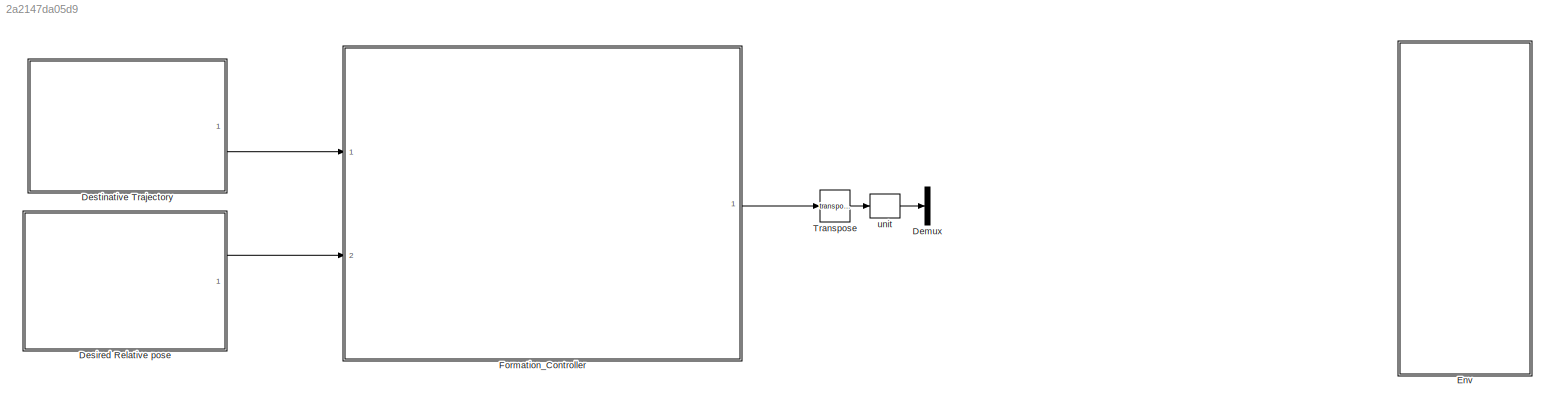
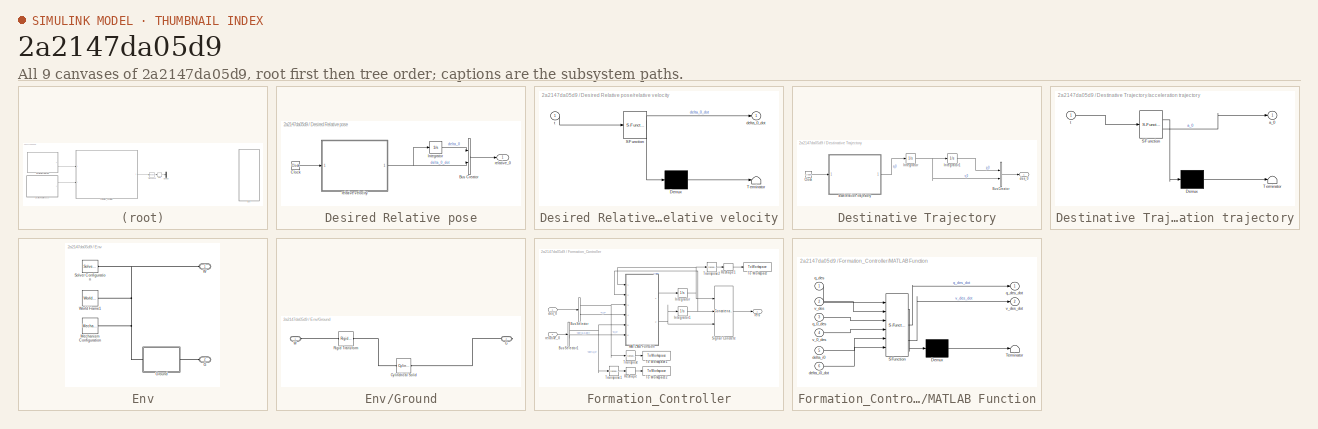
[diagram: thumbnail index - all 9 canvases of the model, root first then tree order]
MODEL slx_2a2147da05d9
KIND model
CONFIG AbsTol = auto
CONFIG EnableMultiTasking = off
CONFIG FixedStep = auto
CONFIG MaxStep = 0.01
CONFIG MinStep = auto
CONFIG RelTol = 1e-3
CONFIG SampleTimeConstraint = Unconstrained
CONFIG SolverName = ode15s
CONFIG StartTime = 0.0
CONFIG StopTime = 16
BLOCK [Demux] Demux
  Outputs = 1
  Ports = [1, 1]
BLOCK [SubSystem] Desired Relative pose
  Ports = [0, 1]
  RequestExecContextInheritance = off
BLOCK [BusCreator] Desired Relative pose/Bus Creator
  DisplayOption = bar
  InheritFromInputs = on
  Inputs = 2
  Ports = [2, 1]
BLOCK [Clock] Desired Relative pose/Clock
BLOCK [Integrator] Desired Relative pose/Integrator
  InitialCondition = delta0_i0
  Ports = [1, 1]
BLOCK [SubSystem] Desired Relative pose/relative velocity
  ErrorFcn = Stateflow.Translate.translate
  PermitHierarchicalResolution = ExplicitOnly
  Ports = [1, 1]
  RequestExecContextInheritance = off
  SFBlockType = MATLAB Function
  TreatAsAtomicUnit = on
BLOCK [Demux] Desired Relative pose/relative velocity/ Demux 
  Outputs = 1
  Ports = [1, 1]
BLOCK [S-Function] Desired Relative pose/relative velocity/ SFunction 
  EnableBusSupport = on
  FunctionName = sf_sfun
  PortCounts = [1 2]
  Ports = [1, 2]
  SFcnIsStateOwnerBlock = off
  SFunctionDeploymentMode = off
  Tag = Stateflow S-Function 5
BLOCK [Terminator] Desired Relative pose/relative velocity/ Terminator 
BLOCK [Outport] Desired Relative pose/relative velocity/delta_0_dot
BLOCK [Inport] Desired Relative pose/relative velocity/t
BLOCK [Outport] Desired Relative pose/relative_0
BLOCK [SubSystem] Destinative Trajectory
  Ports = [0, 1]
  RequestExecContextInheritance = off
BLOCK [BusCreator] Destinative Trajectory/Bus Creator
  DisplayOption = bar
  InheritFromInputs = on
  Inputs = 2
  Ports = [2, 1]
BLOCK [Clock] Destinative Trajectory/Clock
BLOCK [Integrator] Destinative Trajectory/Integrator
  InitialCondition = v0_0
  Ports = [1, 1]
  ZeroCross = off
BLOCK [Integrator] Destinative Trajectory/Integrator1
  InitialCondition = p0_0
  Ports = [1, 1]
BLOCK [SubSystem] Destinative Trajectory/acceleration trajectory
  ErrorFcn = Stateflow.Translate.translate
  PermitHierarchicalResolution = ExplicitOnly
  Ports = [1, 1]
  RequestExecContextInheritance = off
  SFBlockType = MATLAB Function
  TreatAsAtomicUnit = on
BLOCK [Demux] Destinative Trajectory/acceleration trajectory/ Demux 
  Outputs = 1
  Ports = [1, 1]
BLOCK [S-Function] Destinative Trajectory/acceleration trajectory/ SFunction 
  EnableBusSupport = on
  FunctionName = sf_sfun
  PortCounts = [1 2]
  Ports = [1, 2]
  SFcnIsStateOwnerBlock = off
  SFunctionDeploymentMode = off
  Tag = Stateflow S-Function 2
BLOCK [Terminator] Destinative Trajectory/acceleration trajectory/ Terminator 
BLOCK [Outport] Destinative Trajectory/acceleration trajectory/a_0
BLOCK [Inport] Destinative Trajectory/acceleration trajectory/t
BLOCK [Outport] Destinative Trajectory/des_0
BLOCK [SubSystem] Env
  Ports = [0, 0, 0, 0, 0, 2]
  RequestExecContextInheritance = off
BLOCK [PMIOPort] Env/G
  Port = 2
  Side = Left
BLOCK [SubSystem] Env/Ground
  Ports = [0, 0, 0, 0, 0, 1, 1]
  RequestExecContextInheritance = off
BLOCK [Reference] Env/Ground/Cylindrical Solid  REF=sm_lib/Body Elements/Cylindrical Solid
  Ports = [0, 0, 0, 0, 0, 1, 1]
  SourceBlock = sm_lib/Body Elements/Cylindrical Solid
  SourceProductBaseCode = MS
  SourceType = Cylindrical Solid
BLOCK [PMIOPort] Env/Ground/G
  Port = 2
  Side = Right
BLOCK [Reference] Env/Ground/Rigid Transform  REF=sm_lib/Frames and
Transforms/Rigid
Transform
  Ports = [0, 0, 0, 0, 0, 1, 1]
  SourceBlock = sm_lib/Frames and\nTransforms/Rigid\nTransform
  SourceProductBaseCode = MS
  SourceType = Rigid\nTransform
BLOCK [PMIOPort] Env/Ground/W
  Side = Left
BLOCK [Reference] Env/Mechanism Configuration  REF=sm_lib/Utilities/Mechanism
Configuration
  Ports = [0, 0, 0, 0, 0, 0, 1]
  SourceBlock = sm_lib/Utilities/Mechanism\nConfiguration
  SourceProductBaseCode = MS
  SourceType = Mechanism\nConfiguration
BLOCK [Reference] Env/Solver Configuration  REF=nesl_utility/Solver
Configuration
  Ports = [0, 0, 0, 0, 0, 0, 1]
  SourceBlock = nesl_utility/Solver\nConfiguration
  SourceProductBaseCode = PW,SS
  SourceType = Solver\nConfiguration
BLOCK [PMIOPort] Env/W
  Side = Left
BLOCK [Reference] Env/World Frame1  REF=sm_lib/Frames and
Transforms/World Frame
  Ports = [0, 0, 0, 0, 0, 0, 1]
  SourceBlock = sm_lib/Frames and\nTransforms/World Frame
  SourceProductBaseCode = MS
  SourceType = World Frame
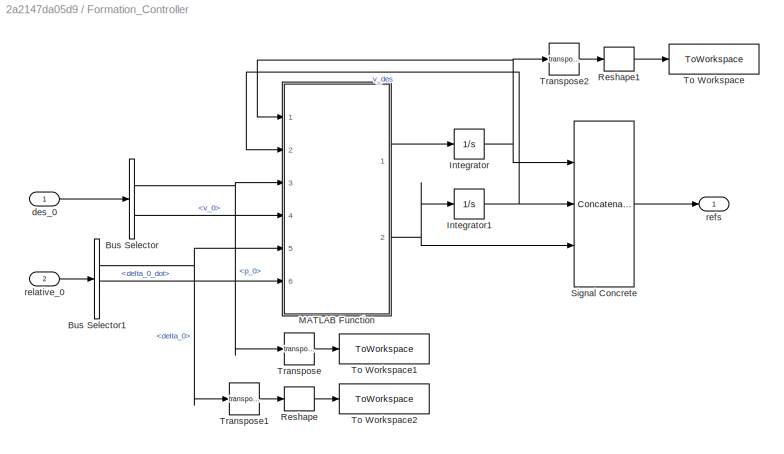
BLOCK [SubSystem] Formation_Controller
  Ports = [2, 1]
  RequestExecContextInheritance = off
BLOCK [BusSelector] Formation_Controller/Bus Selector
  OutputSignals = p_0,v_0
  Ports = [1, 2]
BLOCK [BusSelector] Formation_Controller/Bus Selector1
  OutputSignals = delta_0,delta_0_dot
  Ports = [1, 2]
BLOCK [Integrator] Formation_Controller/Integrator
  InitialCondition = q0
  Ports = [1, 1]
BLOCK [Integrator] Formation_Controller/Integrator1
  InitialCondition = zeros(Num,4)
  Ports = [1, 1]
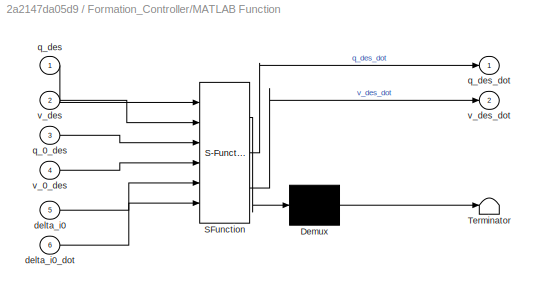
BLOCK [SubSystem] Formation_Controller/MATLAB Function
  ErrorFcn = Stateflow.Translate.translate
  PermitHierarchicalResolution = ExplicitOnly
  Ports = [6, 2]
  RequestExecContextInheritance = off
  SFBlockType = MATLAB Function
  TreatAsAtomicUnit = on
BLOCK [Demux] Formation_Controller/MATLAB Function/ Demux 
  Outputs = 1
  Ports = [1, 1]
BLOCK [S-Function] Formation_Controller/MATLAB Function/ SFunction 
  EnableBusSupport = on
  FunctionName = sf_sfun
  Parameters = Num,adj_matrix,is_0_access,k1,k2
  PortCounts = [6 3]
  Ports = [6, 3]
  SFcnIsStateOwnerBlock = off
  SFunctionDeploymentMode = off
  Tag = Stateflow S-Function 3
BLOCK [Terminator] Formation_Controller/MATLAB Function/ Terminator 
BLOCK [Inport] Formation_Controller/MATLAB Function/delta_i0
  Port = 5
BLOCK [Inport] Formation_Controller/MATLAB Function/delta_i0_dot
  Port = 6
BLOCK [Inport] Formation_Controller/MATLAB Function/q_0_des
  Port = 3
BLOCK [Inport] Formation_Controller/MATLAB Function/q_des
BLOCK [Outport] Formation_Controller/MATLAB Function/q_des_dot
BLOCK [Inport] Formation_Controller/MATLAB Function/v_0_des
  Port = 4
BLOCK [Inport] Formation_Controller/MATLAB Function/v_des
  Port = 2
BLOCK [Outport] Formation_Controller/MATLAB Function/v_des_dot
  Port = 2
BLOCK [Reshape] Formation_Controller/Reshape
  Ports = [1, 1]
BLOCK [Reshape] Formation_Controller/Reshape1
  Ports = [1, 1]
BLOCK [Concatenate] Formation_Controller/Signal Concrete
  ConcatenateDimension = 2
  Mode = Multidimensional array
  NumInputs = 3
  Ports = [3, 1]
BLOCK [ToWorkspace] Formation_Controller/To Workspace
  FixptAsFi = on
  MaxDataPoints = inf
  Ports = [1]
  SampleTime = -1
  Save2DSignal = 2-D array (concatenate along first dimension)
  VariableName = refs
BLOCK [ToWorkspace] Formation_Controller/To Workspace1
  FixptAsFi = on
  MaxDataPoints = inf
  Ports = [1]
  SampleTime = -1
  Save2DSignal = 2-D array (concatenate along first dimension)
  VariableName = des
BLOCK [ToWorkspace] Formation_Controller/To Workspace2
  FixptAsFi = on
  MaxDataPoints = inf
  Ports = [1]
  SampleTime = -1
  Save2DSignal = 2-D array (concatenate along first dimension)
  VariableName = rel
BLOCK [Math] Formation_Controller/Transpose
  Operator = transpose
  Ports = [1, 1]
BLOCK [Math] Formation_Controller/Transpose1
  Operator = transpose
  Ports = [1, 1]
BLOCK [Math] Formation_Controller/Transpose2
  Operator = transpose
  Ports = [1, 1]
BLOCK [Inport] Formation_Controller/des_0
BLOCK [Outport] Formation_Controller/refs
BLOCK [Inport] Formation_Controller/relative_0
  Port = 2
BLOCK [Math] Transpose
  Operator = transpose
  Ports = [1, 1]
BLOCK [Reshape] unit
  Ports = [1, 1]
LINE Desired Relative pose/Bus Creator:1 -> Desired Relative pose/relative_0:1
LINE Desired Relative pose/Clock:1 -> Desired Relative pose/relative velocity:1
LINE Desired Relative pose/Integrator:1 -> Desired Relative pose/Bus Creator:1
NET Desired Relative pose/relative velocity:1 -> Desired Relative pose/Bus Creator:2, Desired Relative pose/Integrator:1
LINE Desired Relative pose:1 -> Formation_Controller:2
LINE Destinative Trajectory/Bus Creator:1 -> Destinative Trajectory/des_0:1
LINE Destinative Trajectory/Clock:1 -> Destinative Trajectory/acceleration trajectory:1
LINE Destinative Trajectory/Integrator1:1 -> Destinative Trajectory/Bus Creator:1
NET Destinative Trajectory/Integrator:1 -> Destinative Trajectory/Bus Creator:2, Destinative Trajectory/Integrator1:1
LINE Destinative Trajectory/acceleration trajectory:1 -> Destinative Trajectory/Integrator:1
LINE Destinative Trajectory:1 -> Formation_Controller:1
NET Formation_Controller/Bus Selector1:1 -> Formation_Controller/MATLAB Function:5, Formation_Controller/Transpose1:1
LINE Formation_Controller/Bus Selector1:2 -> Formation_Controller/MATLAB Function:6
NET Formation_Controller/Bus Selector:1 -> Formation_Controller/MATLAB Function:3, Formation_Controller/Transpose:1
LINE Formation_Controller/Bus Selector:2 -> Formation_Controller/MATLAB Function:4
NET Formation_Controller/Integrator1:1 -> Formation_Controller/MATLAB Function:2, Formation_Controller/Signal Concrete:2
NET Formation_Controller/Integrator:1 -> Formation_Controller/MATLAB Function:1, Formation_Controller/Signal Concrete:1, Formation_Controller/Transpose2:1
LINE Formation_Controller/MATLAB Function:1 -> Formation_Controller/Integrator:1
NET Formation_Controller/MATLAB Function:2 -> Formation_Controller/Integrator1:1, Formation_Controller/Signal Concrete:3
LINE Formation_Controller/Reshape1:1 -> Formation_Controller/To Workspace:1
LINE Formation_Controller/Reshape:1 -> Formation_Controller/To Workspace2:1
LINE Formation_Controller/Signal Concrete:1 -> Formation_Controller/refs:1
LINE Formation_Controller/Transpose1:1 -> Formation_Controller/Reshape:1
LINE Formation_Controller/Transpose2:1 -> Formation_Controller/Reshape1:1
LINE Formation_Controller/Transpose:1 -> Formation_Controller/To Workspace1:1
LINE Formation_Controller/des_0:1 -> Formation_Controller/Bus Selector:1
LINE Formation_Controller/relative_0:1 -> Formation_Controller/Bus Selector1:1
LINE Formation_Controller:1 -> Transpose:1
LINE Transpose:1 -> unit:1
LINE unit:1 -> Demux:1
PLINE Env/G:RConn1 -- Env/Ground:RConn1
PLINE Env/Ground/Cylindrical Solid:LConn1 -- Env/Ground/Rigid Transform:RConn1
PLINE Env/Ground/Cylindrical Solid:RConn1 -- Env/Ground/G:RConn1
PLINE Env/Ground/Rigid Transform:LConn1 -- Env/Ground/W:RConn1
PNET net1: Env/Ground:LConn1 -- Env/Mechanism Configuration:RConn1 -- Env/Solver Configuration:RConn1 -- Env/W:RConn1 -- Env/World Frame1:RConn1
note: NET lines group one-source signal fan-out (src -> all destinations, sorted); 1:1 wires keep LINE; PNET lines group multi-terminal physical nets as a canonical sorted terminal list (undirected conserving connections); 2-terminal nets keep the pairwise PLINE form
CHART Destinative Trajectory/acceleration trajectory states=1 transitions=1
  STATE_LABEL 'eML_blk_kernel()'
  STATE_LABEL 'SCRIPT:\nfunction a_0 = fcn_a_0(t)\na_0 = f_a_0(t);\n'
CHART Formation_Controller/MATLAB Function states=1 transitions=1
  STATE_LABEL 'eML_blk_kernel()'
  STATE_LABEL "SCRIPT:\nfunction [q_des_dot, v_des_dot] = fcn(q_des, v_des, q_0_des, v_0_des, delta_i0, delta_i0_dot, Num, k1, k2, adj_matrix, is_0_access)\nq_des_dot=zeros(Num,4);\nv_des_dot=zeros(Num,4);\n\nfor i=1:Num\n    q_des_dot(i,:) = v_des(i,:) - k1*is_0_access(i)*((q_des(i,:)-q_0_des')-delta_i0(i,:));\n    for j=1:Num\n        q_des_dot(i,:) = q_des_dot(i,:) - k1*adj_matrix(i,j)*((q_des(i,:)-q_des(j,:))-(delta...<+431ch>"
CHART Desired Relative pose/relative velocity states=1 transitions=1
  STATE_LABEL 'eML_blk_kernel()'
  STATE_LABEL 'SCRIPT:\nfunction delta_0_dot = rel_vel(t)\ndelta_0_dot = rel_v(t);'
CHART  states=0 transitions=0
CHART  states=0 transitions=0
CHART  states=0 transitions=0
